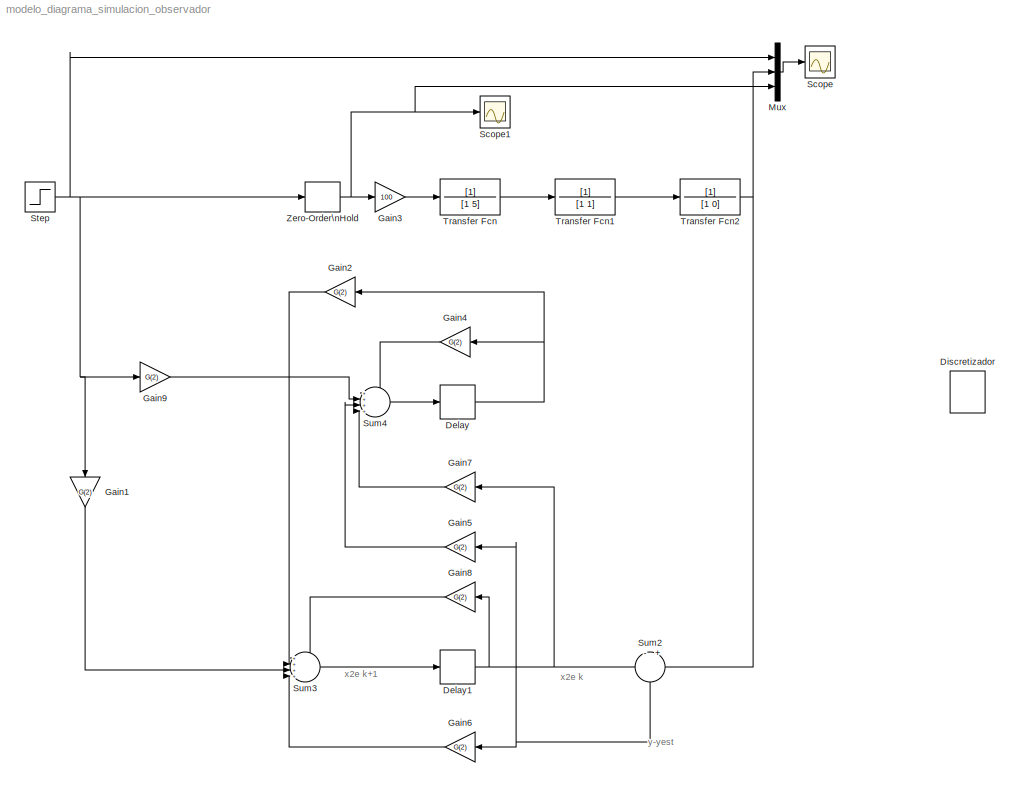
MODEL modelo_diagrama_simulacion_observador
KIND model
BLOCK [Delay] Delay
  DelayLength = 1
  InputPortMap = u0
  Ports = [1, 1]
  SID = 21
  SampleTime = Ts
BLOCK [Delay] Delay1
  DelayLength = 1
  InputPortMap = u0
  Ports = [1, 1]
  SID = 22
  SampleTime = Ts
BLOCK [DiscreteTransferFcn] Discretizador
  Denominator = [1]
  InputPortMap = u0
  Ports = [1, 1]
  SID = 20
  SampleTime = Ts
BLOCK [Gain] Gain1
  Gain = G(2)
  OutDataTypeStr = Inherit: Inherit via internal rule
  ParamDataTypeStr = Inherit: Inherit via internal rule
  SID = 34
  SaturateOnIntegerOverflow = off
BLOCK [Gain] Gain2
  Gain = G(2)
  OutDataTypeStr = Inherit: Inherit via internal rule
  ParamDataTypeStr = Inherit: Inherit via internal rule
  SID = 35
  SaturateOnIntegerOverflow = off
BLOCK [Gain] Gain3
  Gain = 100
  OutDataTypeStr = Inherit: Inherit via internal rule
  ParamDataTypeStr = Inherit: Inherit via internal rule
  SID = 13
  SaturateOnIntegerOverflow = off
BLOCK [Gain] Gain4
  Gain = G(2)
  OutDataTypeStr = Inherit: Inherit via internal rule
  ParamDataTypeStr = Inherit: Inherit via internal rule
  SID = 24
  SaturateOnIntegerOverflow = off
BLOCK [Gain] Gain5
  Gain = G(2)
  OutDataTypeStr = Inherit: Inherit via internal rule
  ParamDataTypeStr = Inherit: Inherit via internal rule
  SID = 25
  SaturateOnIntegerOverflow = off
BLOCK [Gain] Gain6
  Gain = G(2)
  OutDataTypeStr = Inherit: Inherit via internal rule
  ParamDataTypeStr = Inherit: Inherit via internal rule
  SID = 26
  SaturateOnIntegerOverflow = off
BLOCK [Gain] Gain7
  Gain = G(2)
  OutDataTypeStr = Inherit: Inherit via internal rule
  ParamDataTypeStr = Inherit: Inherit via internal rule
  SID = 27
  SaturateOnIntegerOverflow = off
BLOCK [Gain] Gain8
  Gain = G(2)
  OutDataTypeStr = Inherit: Inherit via internal rule
  ParamDataTypeStr = Inherit: Inherit via internal rule
  SID = 36
  SaturateOnIntegerOverflow = off
BLOCK [Gain] Gain9
  Gain = G(2)
  OutDataTypeStr = Inherit: Inherit via internal rule
  ParamDataTypeStr = Inherit: Inherit via internal rule
  SID = 37
  SaturateOnIntegerOverflow = off
BLOCK [Mux] Mux
  DisplayOption = bar
  Inputs = 3
  Ports = [3, 1]
  SID = 14
BLOCK [Scope] Scope
  DataFormat = StructureWithTime
  Floating = off
  LimitDataPoints = off
  NumInputPorts = 1
  Ports = [1]
  SID = 9
  SaveName = datos
  SaveToWorkspace = on
  YMax = 1.18155
  YMin = -0.19955
BLOCK [Scope] Scope1
  DataFormat = StructureWithTime
  Floating = off
  LimitDataPoints = off
  NumInputPorts = 1
  Ports = [1]
  SID = 10
  SaveName = ScopeData1
  YMax = 0.64227
  YMin = -0.13963
BLOCK [Step] Step
  SID = 11
  SampleTime = Ts
  Time = 0
BLOCK [Sum] Sum2
  IconShape = round
  InputSameDT = off
  Inputs = -|+
  OutDataTypeStr = Inherit: Inherit via internal rule
  Ports = [2, 1]
  SID = 28
  SaturateOnIntegerOverflow = off
BLOCK [Sum] Sum3
  IconShape = round
  InputSameDT = off
  Inputs = ++++|
  OutDataTypeStr = Inherit: Inherit via internal rule
  Ports = [4, 1]
  SID = 29
  SaturateOnIntegerOverflow = off
BLOCK [Sum] Sum4
  IconShape = round
  InputSameDT = off
  Inputs = ++++|
  OutDataTypeStr = Inherit: Inherit via internal rule
  Ports = [4, 1]
  SID = 30
  SaturateOnIntegerOverflow = off
BLOCK [TransferFcn] Transfer Fcn
  Denominator = [1 5]
  SID = 1
BLOCK [TransferFcn] Transfer Fcn1
  Denominator = [1 1]
  SID = 2
BLOCK [TransferFcn] Transfer Fcn2
  Denominator = [1 0]
  SID = 3
BLOCK [ZeroOrderHold] Zero-Order\nHold
  SID = 4
  SampleTime = Ts
ANNOTATION (root): x2e k
ANNOTATION (root): x2e k+1
ANNOTATION (root): y-yest
NET Delay1:1 -> Gain7:1, Gain8:1, Sum2:1
NET Delay:1 -> Gain2:1, Gain4:1
LINE Gain1:1 -> Sum3:3
LINE Gain2:1 -> Sum3:2
LINE Gain3:1 -> Transfer Fcn:1
LINE Gain4:1 -> Sum4:1
LINE Gain5:1 -> Sum4:3
LINE Gain6:1 -> Sum3:4
LINE Gain7:1 -> Sum4:4
LINE Gain8:1 -> Sum3:1
LINE Gain9:1 -> Sum4:2
LINE Mux:1 -> Scope:1
NET Step:1 -> Gain1:1, Gain9:1, Mux:1, Zero-Order\nHold:1
NET Sum2:1 -> Gain5:1, Gain6:1
LINE Sum3:1 -> Delay1:1
LINE Sum4:1 -> Delay:1
LINE Transfer Fcn1:1 -> Transfer Fcn2:1
NET Transfer Fcn2:1 -> Mux:2, Sum2:2
LINE Transfer Fcn:1 -> Transfer Fcn1:1
NET Zero-Order\nHold:1 -> Gain3:1, Mux:3, Scope1:1
note: NET lines group one-source signal fan-out (src -> all destinations, sorted); 1:1 wires keep LINE
